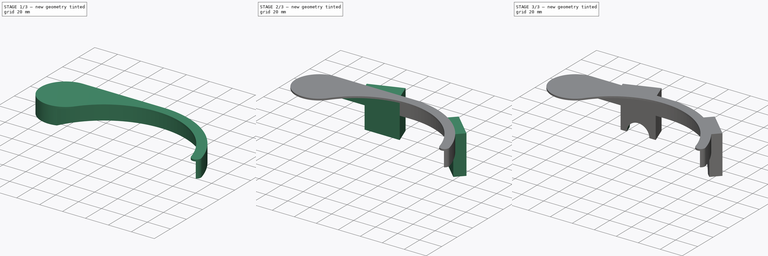
[diagram: build sequence overview — one tinted view per stage of 3, left to right]
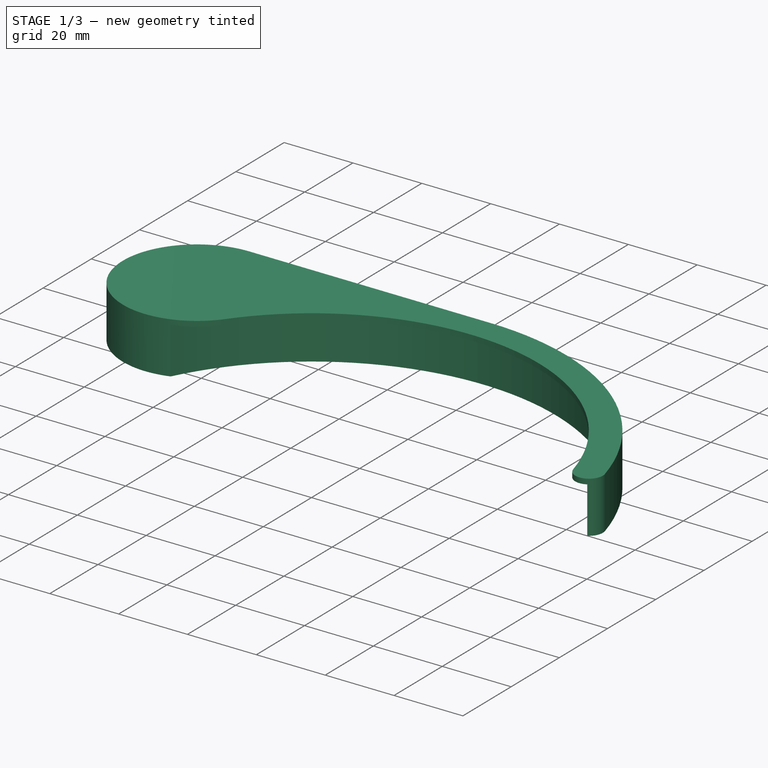
[diagram: stage 1 of 3 — iso view after this stage's code; geometry added in this stage tinted green]
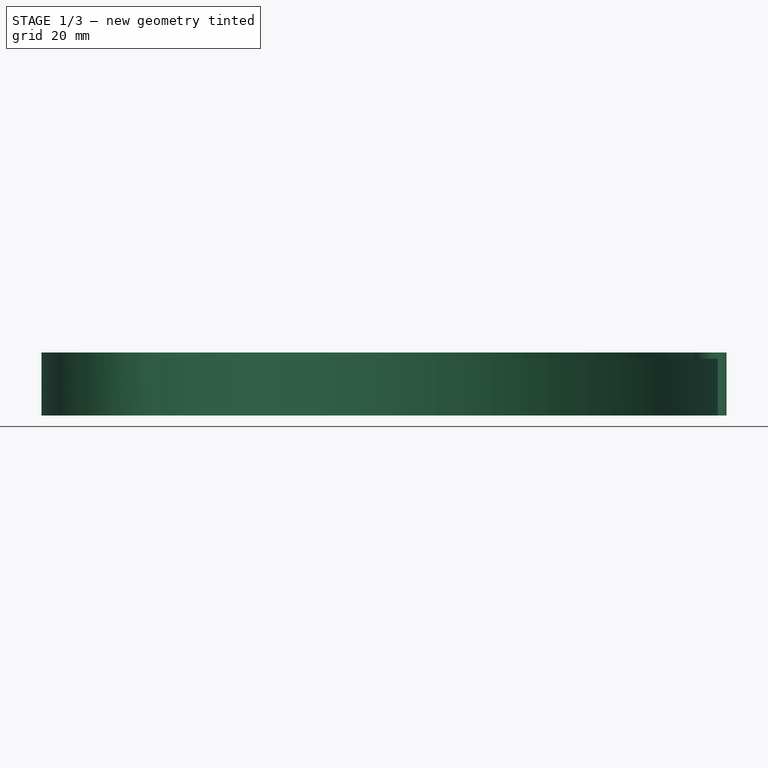
[diagram: stage 1 of 3 — front view after this stage's code; geometry added in this stage tinted green]
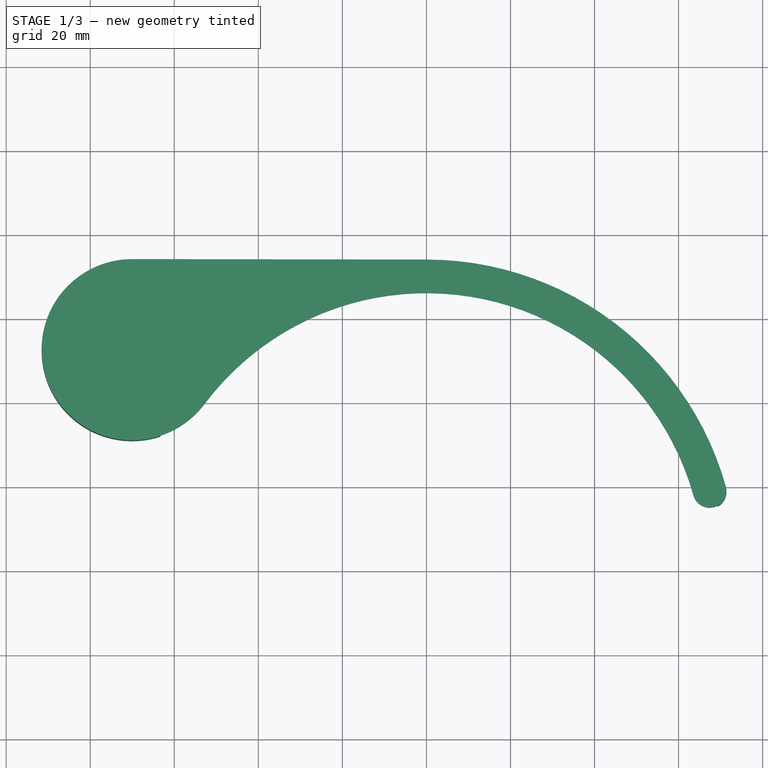
[diagram: stage 1 of 3 — top view after this stage's code; geometry added in this stage tinted green]
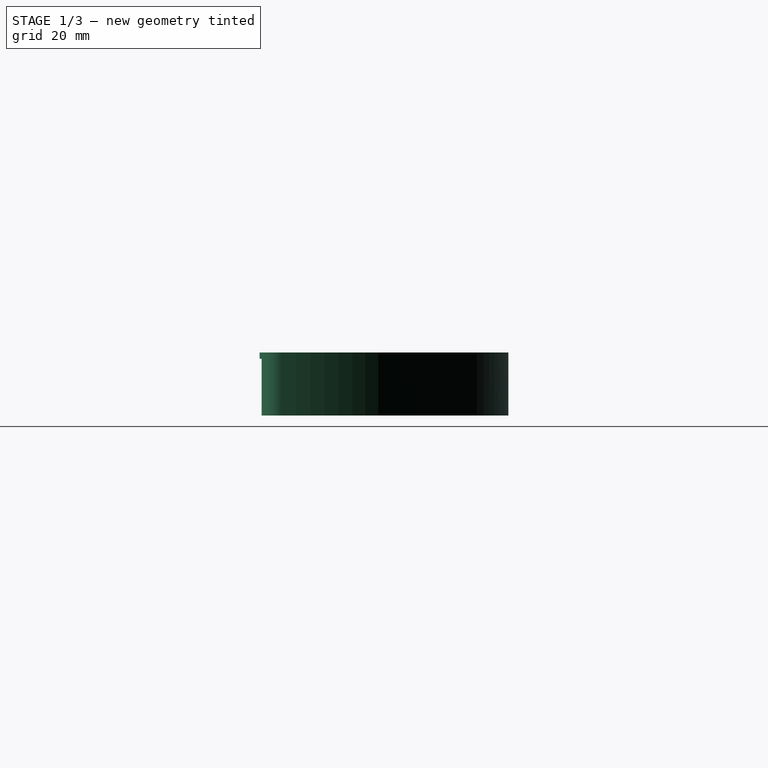
[diagram: stage 1 of 3 — right view after this stage's code; geometry added in this stage tinted green]
FCSTD DOCUMENT  (FreeCAD 0.16R)
Label: 32t.03
License: All rights reserved
LicenseURL: http://en.wikipedia.org/wiki/All_rights_reserved
objects: Sketcher::SketchObject×7, PartDesign::Pocket×4, PartDesign::Pad×3
note: 21 computed .brp shape members not serialized (recipe doc carries the construction recipe); baked Part::Feature solids carry a one-line shape summary decoded from their .brp

FEATURE [Sketcher::SketchObject] Sketch001
  sketch-geometry (10):
    g0: LineSegment [constr] StartX=0 StartY=0 StartZ=0 EndX=-51.0894 EndY=141.031 EndZ=0
    g1: LineSegment [constr] StartX=0 StartY=0 StartZ=0 EndX=109.858 EndY=102.133 EndZ=0
    g2: Circle [constr] CenterX=0 CenterY=0 CenterZ=0 NormalX=0 NormalY=0 NormalZ=1 Radius=68.5
    g3: Circle [constr] CenterX=-330 CenterY=50 CenterZ=0 NormalX=0 NormalY=0 NormalZ=1 Radius=19
    g4: LineSegment [constr] StartX=-329.971 StartY=69 StartZ=0 EndX=0.103776 EndY=68.4999 EndZ=0
    g5: ArcOfCircle CenterX=0 CenterY=0 CenterZ=0 NormalX=0 NormalY=0 NormalZ=1 Radius=74 StartAngle=0.273674 EndAngle=1.56928
    g6: LineSegment StartX=0.112109 StartY=73.9999 StartZ=0 EndX=-70 EndY=74.1061 EndZ=0
    g7: ArcOfCircle CenterX=-70.0327 CenterY=52.55 CenterZ=0 NormalX=0 NormalY=0 NormalZ=1 Radius=21.5562 StartAngle=1.56928 EndAngle=5.63945
    g8: ArcOfCircle CenterX=67.3949 CenterY=18.9189 CenterZ=0 NormalX=0 NormalY=0 NormalZ=1 Radius=4 StartAngle=3.41527 EndAngle=6.55686
    g9: ArcOfCircle CenterX=0 CenterY=0 CenterZ=0 NormalX=0 NormalY=0 NormalZ=1 Radius=66 StartAngle=0.273674 EndAngle=2.49786
  constraints (32):
    c: Coincident(g0,g-1)
    c: Coincident(g1,g-1)
    c: Angle(g1,g0) = 1.16937
    c: Coincident(g2,g-1)
    c: Radius(g2) = 68.5
    c: DistanceX(g3) = -330
    c: Radius(g3) = 19
    c: PointOnObject(g4,g3)
    c: PointOnObject(g4,g2)
    c: Tangent(g4,g2)
    c: Tangent(g4,g3)
    c: DistanceY(g3) = 50
    c: Distance(g0) = 150
    c: Distance(g1) = 150
    c: Coincident(g5,g-1)
    c: Radius(g5) = 74
    c: Coincident(g6,g5)
    c: Tangent(g5,g6)
    c: Parallel(g6,g4)
    c: Coincident(g7,g6)
    c: Tangent(g6,g7)
    c: Tangent(g8,g5)
    c: Coincident(g8,g5)
    c: Radius(g8) = 4
    c: Coincident(g9,g-1)
    c: Coincident(g9,g8)
    c: Tangent(g8,g9)
    c: Coincident(g7,g9)
    c: Tangent(g7,g9)
    c: DistanceX(g6) = -70
    c: DistanceY(g5) = 20
    c: Angle(g0,g4) = 1.22173
FEATURE [PartDesign::Pad] Pad
  Length = 15
  Length2 = 100
  Sketch = -> Sketch001
  Type = 0
FEATURE [Sketcher::SketchObject] Sketch002
  Placement = pos=(0,0,0) rot=(1,0,0;3.14159rad)
  Support = -> Pad [Face6]
  sketch-geometry (1):
    g0: Circle CenterX=0 CenterY=0 CenterZ=0 NormalX=0 NormalY=0 NormalZ=1 Radius=71
  constraints (2):
    c: Coincident(g0,g-1)
    c: Radius(g0) = 71
FEATURE [PartDesign::Pocket] Pocket
  Length = 13.5
  Sketch = -> Sketch002
  Type = 0
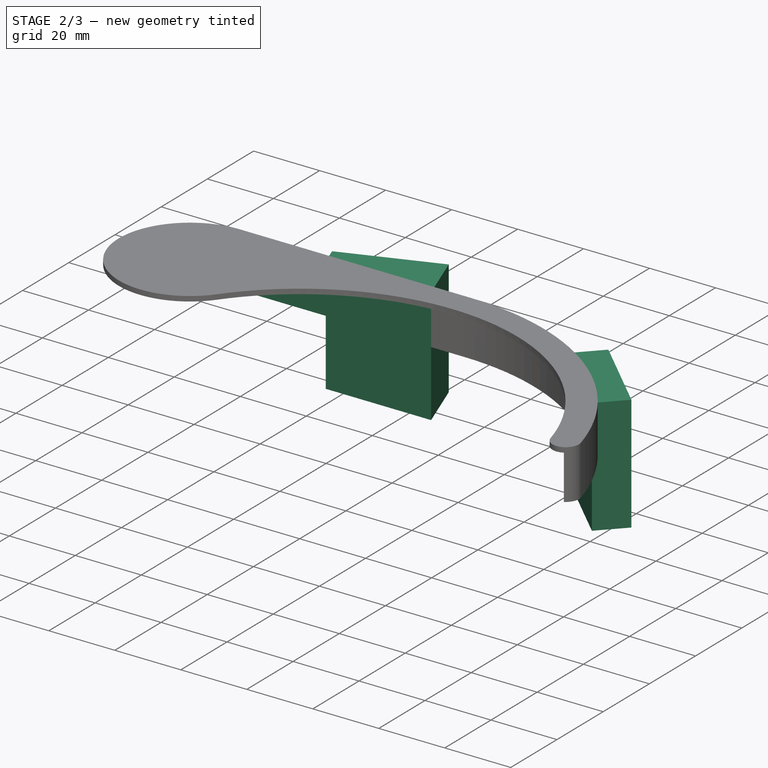
[diagram: stage 2 of 3 — iso view after this stage's code; geometry added in this stage tinted green]
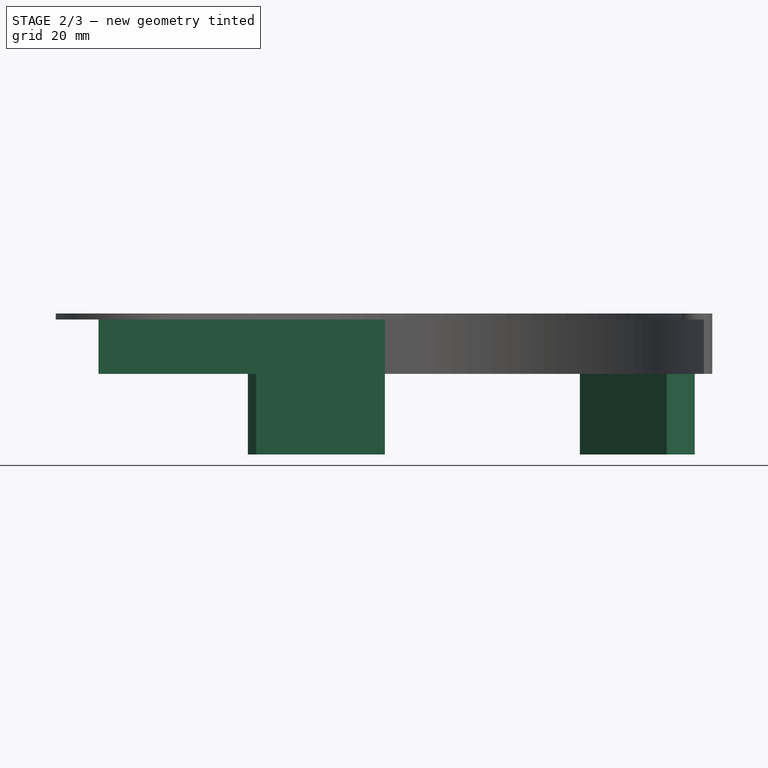
[diagram: stage 2 of 3 — front view after this stage's code; geometry added in this stage tinted green]
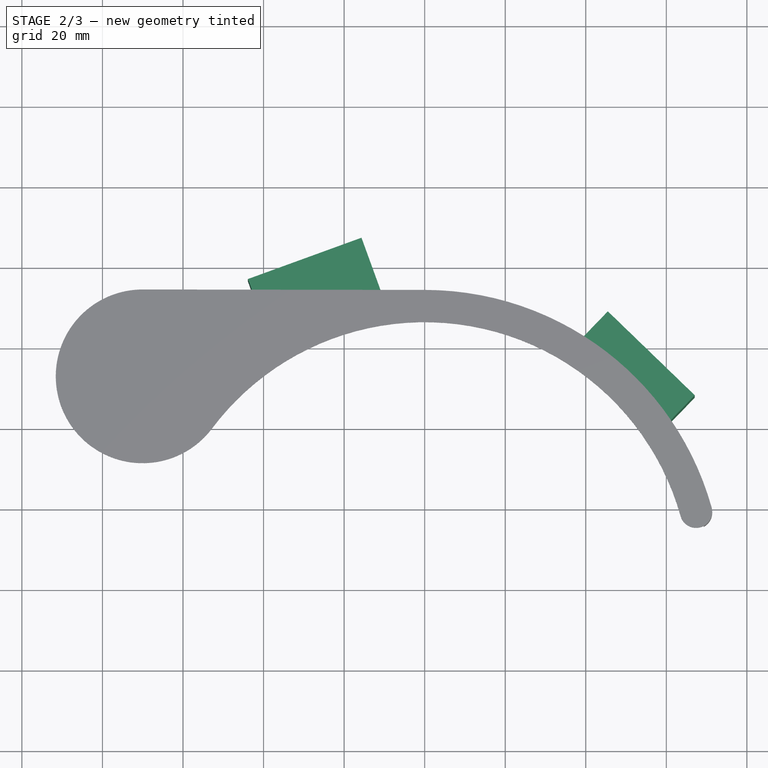
[diagram: stage 2 of 3 — top view after this stage's code; geometry added in this stage tinted green]
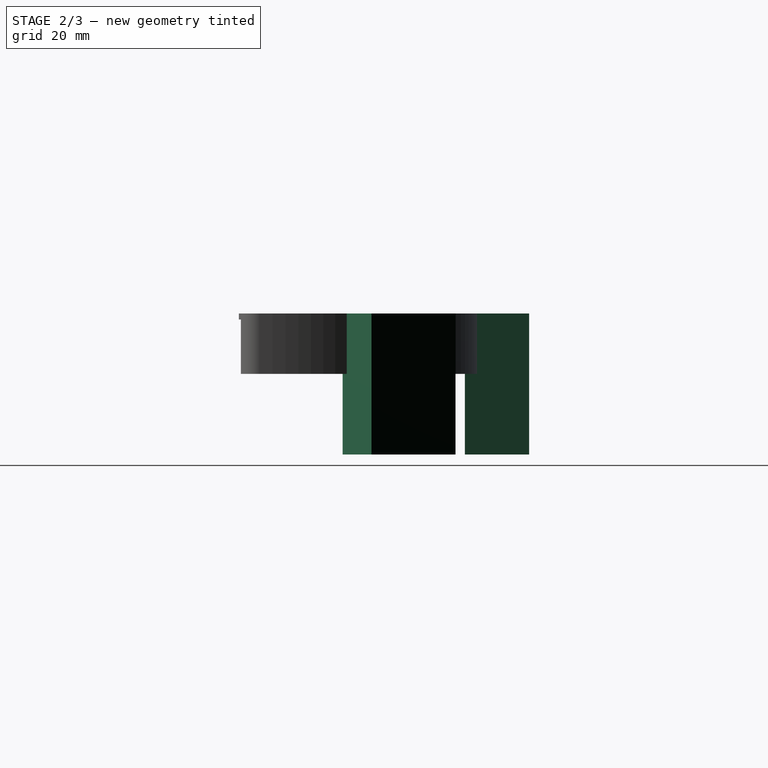
[diagram: stage 2 of 3 — right view after this stage's code; geometry added in this stage tinted green]
FEATURE [Sketcher::SketchObject] Sketch003
  ExternalGeometry = -> [Pocket]
  Placement = pos=(0,0,0) rot=(1,0,0;3.14159rad)
  Support = -> Pocket [Face4]
  sketch-geometry (3):
    g0: LineSegment StartX=-153.249 StartY=-71.2323 StartZ=0 EndX=0.107679 EndY=-70.9999 EndZ=0
    g1: LineSegment StartX=0.107679 StartY=-70.9999 StartZ=0 EndX=-35.4631 EndY=35.7409 EndZ=0
    g2: LineSegment StartX=-35.4631 StartY=35.7409 StartZ=0 EndX=-153.249 EndY=-71.2323 EndZ=0
  constraints (9):
    c: Coincident(g0,g1)
    c: Coincident(g1,g2)
    c: Coincident(g0,g2)
    c: PointOnObject(g0,g-4)
    c: Tangent(g0,g-4)
    c: Parallel(g0,g-3)
    c: DistanceY(g1) = 35.7409
    c: DistanceX(g1) = -35.4631
    c: Distance(g0) = 153.357
FEATURE [PartDesign::Pocket] Pocket001
  Length = 13.5
  Sketch = -> Sketch003
  Type = 0
FEATURE [Sketcher::SketchObject] Sketch005
  ExternalGeometry = -> [Pocket001]
  Placement = pos=(0,0,15) rot=(0,0,1;0rad)
  Support = -> Pocket001 [Face5]
  sketch-geometry (7):
    g0: LineSegment [constr] StartX=0 StartY=0 StartZ=0 EndX=-51.303 EndY=140.954 EndZ=0
    g1: LineSegment [constr] StartX=0 StartY=0 StartZ=0 EndX=104.199 EndY=107.901 EndZ=0
    g2: Circle [constr] CenterX=-330 CenterY=50 CenterZ=0 NormalX=0 NormalY=0 NormalZ=1 Radius=19
    g3: LineSegment StartX=38.5306 StartY=61.493 StartZ=0 EndX=45.4772 EndY=68.6864 EndZ=0
    g4: LineSegment StartX=45.4772 StartY=68.6864 StartZ=0 EndX=67.0574 EndY=47.8466 EndZ=0
    g5: LineSegment StartX=67.0574 StartY=47.8466 StartZ=0 EndX=60.1108 EndY=40.6533 EndZ=0
    g6: LineSegment StartX=60.1108 StartY=40.6533 StartZ=0 EndX=38.5306 EndY=61.493 EndZ=0
  constraints (21):
    c: Coincident(g0,g-1)
    c: Coincident(g1,g-1)
    c: Angle(g1,g0) = 1.11701
    c: Angle(g0) = 1.91986
    c: DistanceX(g2) = -330
    c: Radius(g2) = 19
    c: DistanceY(g2) = 50
    c: Distance(g0) = 150
    c: Distance(g1) = 150
    c: Coincident(g3,g4)
    c: Coincident(g4,g5)
    c: Coincident(g5,g6)
    c: Coincident(g6,g3)
    c: Perpendicular(g1,g4)
    c: Parallel(g6,g4)
    c: Parallel(g5,g3)
    c: Perpendicular(g4,g3)
    c: Distance(g5) = 10
    c: Symmetric(g4,g3,g1)
    c: Distance(g4) = 30
    c: Distance(g-1,g6) = 71
FEATURE [PartDesign::Pad] Pad001
  Length = 35
  Length2 = 100
  Reversed = true
  Sketch = -> Sketch005
  Type = 0
FEATURE [Sketcher::SketchObject] Sketch006
  ExternalGeometry = -> [Pocket001]
  Placement = pos=(0,0,15) rot=(0,0,1;0rad)
  Support = -> Pad001 [Face6]
  sketch-geometry (7):
    g0: LineSegment [constr] StartX=0 StartY=0 StartZ=0 EndX=-51.303 EndY=140.954 EndZ=0
    g1: LineSegment [constr] StartX=0 StartY=0 StartZ=0 EndX=104.199 EndY=107.901 EndZ=0
    g2: Circle [constr] CenterX=-330 CenterY=50 CenterZ=0 NormalX=0 NormalY=0 NormalZ=1 Radius=19
    g3: LineSegment StartX=-41.8276 StartY=71.0634 StartZ=0 EndX=-43.8798 EndY=76.7016 EndZ=0
    g4: LineSegment StartX=-43.8798 StartY=76.7016 StartZ=0 EndX=-15.689 EndY=86.9622 EndZ=0
    g5: LineSegment StartX=-15.689 StartY=86.9622 StartZ=0 EndX=-9.8847 EndY=71.0151 EndZ=0
    g6: LineSegment StartX=-9.8847 StartY=71.0151 StartZ=0 EndX=-41.8276 EndY=71.0634 EndZ=0
  constraints (20):
    c: Coincident(g0,g-1)
    c: Coincident(g1,g-1)
    c: Angle(g1,g0) = 1.11701
    c: Angle(g0) = 1.91986
    c: DistanceX(g2) = -330
    c: Radius(g2) = 19
    c: DistanceY(g2) = 50
    c: Distance(g0) = 150
    c: Distance(g1) = 150
    c: Coincident(g3,g4)
    c: Coincident(g4,g5)
    c: Coincident(g5,g6)
    c: Coincident(g6,g3)
    c: Parallel(g5,g3)
    c: Distance(g4) = 30
    c: Symmetric(g4,g3,g0)
    c: Perpendicular(g4,g3)
    c: Distance(g3,g3) = 6
    c: Parallel(g6,g-4)
    c: Distance(g5,g-4) = 3
FEATURE [PartDesign::Pad] Pad002
  Length = 35
  Length2 = 100
  Reversed = true
  Sketch = -> Sketch006
  Type = 0
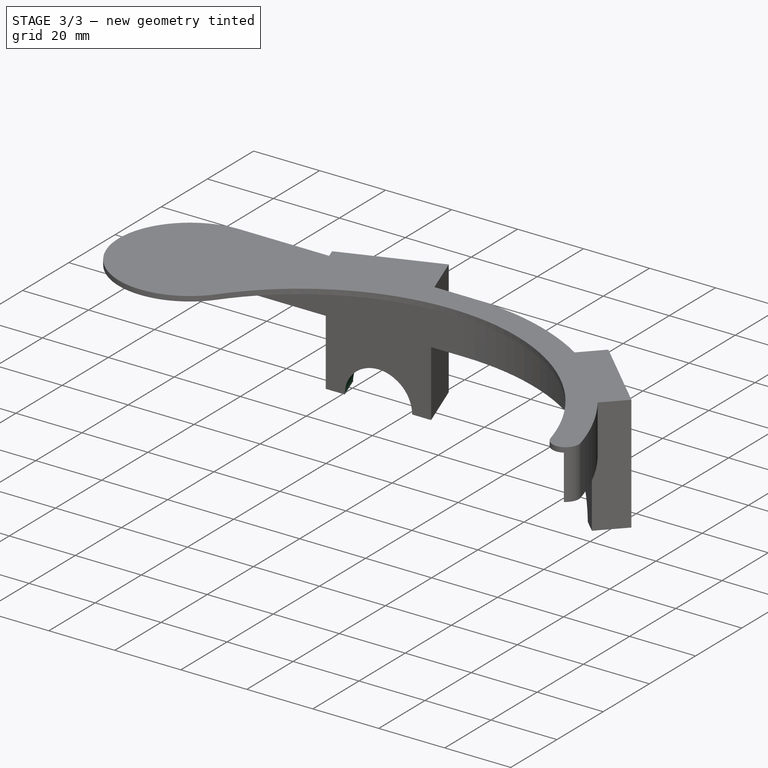
[diagram: stage 3 of 3 — iso view after this stage's code; geometry added in this stage tinted green]
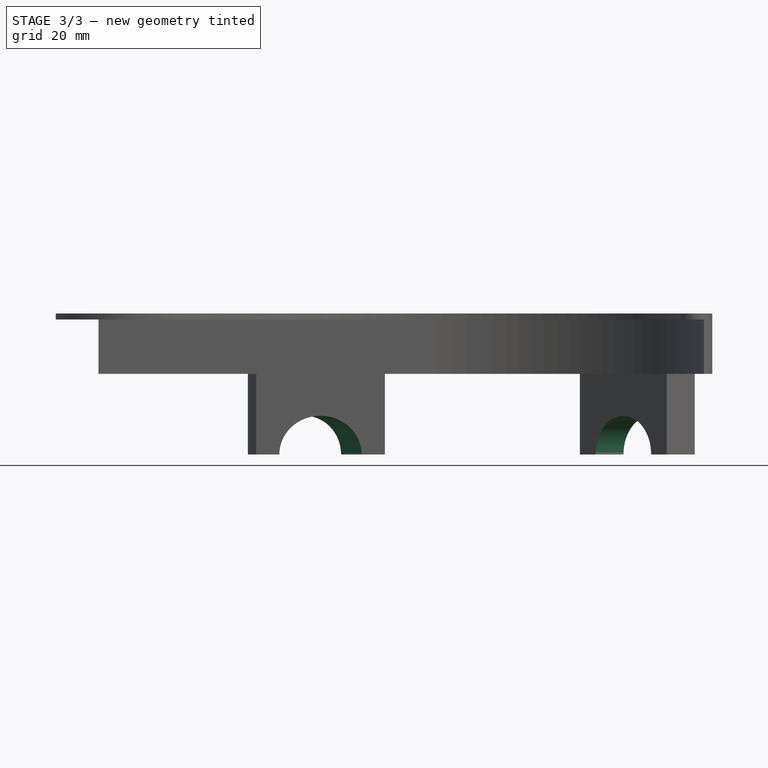
[diagram: stage 3 of 3 — front view after this stage's code; geometry added in this stage tinted green]
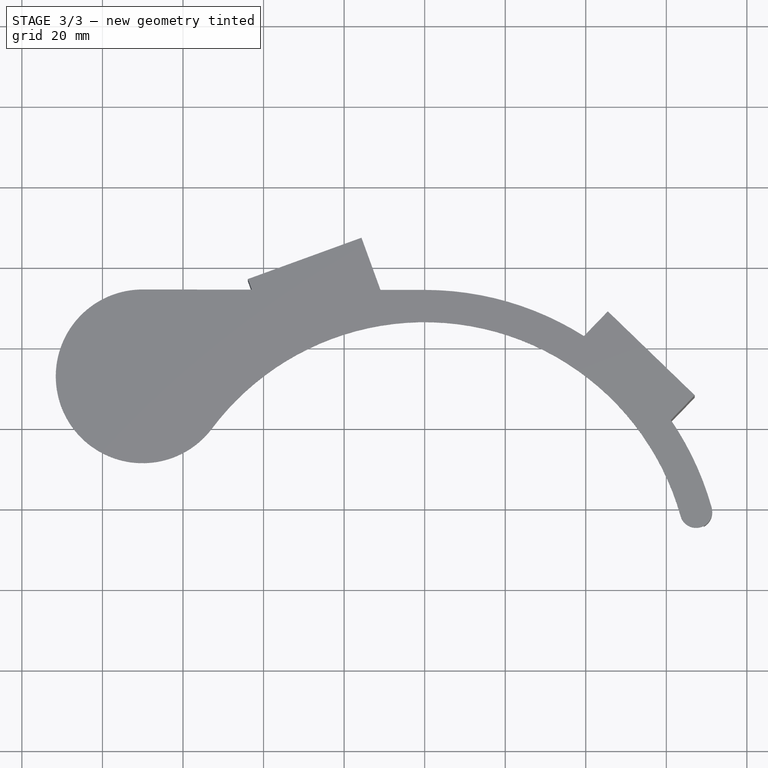
[diagram: stage 3 of 3 — top view after this stage's code; geometry added in this stage tinted green]
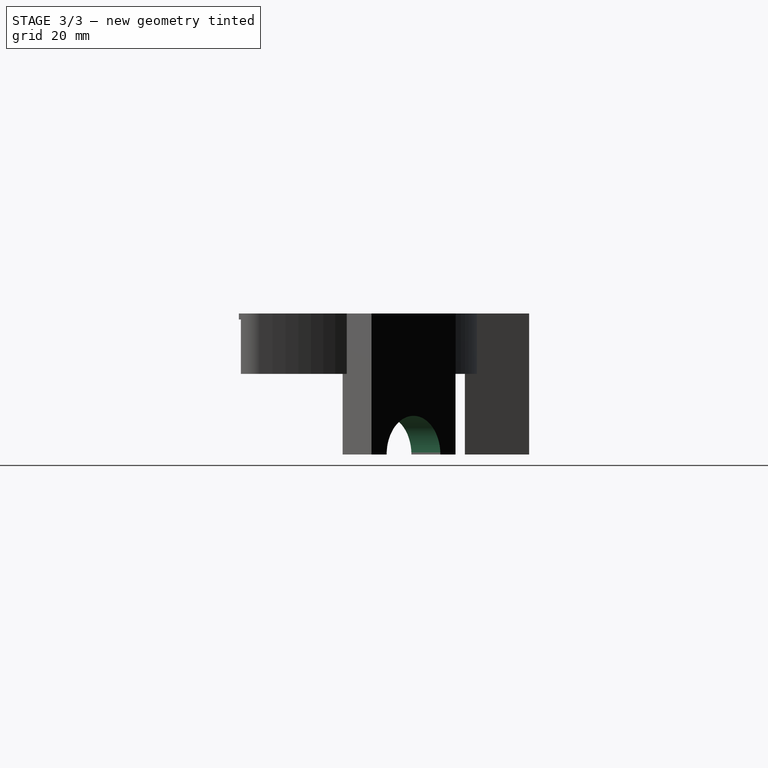
[diagram: stage 3 of 3 — right view after this stage's code; geometry added in this stage tinted green]
FEATURE [Sketcher::SketchObject] Sketch
  ExternalGeometry = -> [Pad002]
  Placement = pos=(49.3207,51.0731,0) rot=(0.868262,-0.3508,-0.3508;1.71159rad)
  Support = -> Pad002 [Face10]
  sketch-geometry (1):
    g0: Circle CenterX=0 CenterY=-20 CenterZ=0 NormalX=0 NormalY=0 NormalZ=1 Radius=9.6
  constraints (2):
    c: Symmetric(g-3,g-3,g0)
    c: Radius(g0) = 9.6
FEATURE [PartDesign::Pocket] Pocket002
  Length = 5
  Sketch = -> Sketch
  Type = 1
FEATURE [Sketcher::SketchObject] Sketch009
  ExternalGeometry = -> [Pocket002]
  Placement = pos=(-29.7844,81.8319,0) rot=(-0.123724,0.701674,0.701674;3.38779rad)
  Support = -> Pocket002 [Face34]
  sketch-geometry (1):
    g0: Circle CenterX=0 CenterY=-20 CenterZ=0 NormalX=0 NormalY=0 NormalZ=1 Radius=9.6
  constraints (2):
    c: Symmetric(g-4,g-3,g0)
    c: Radius(g0) = 9.6
FEATURE [PartDesign::Pocket] Pocket003
  Length = 5
  Sketch = -> Sketch009
  Type = 1
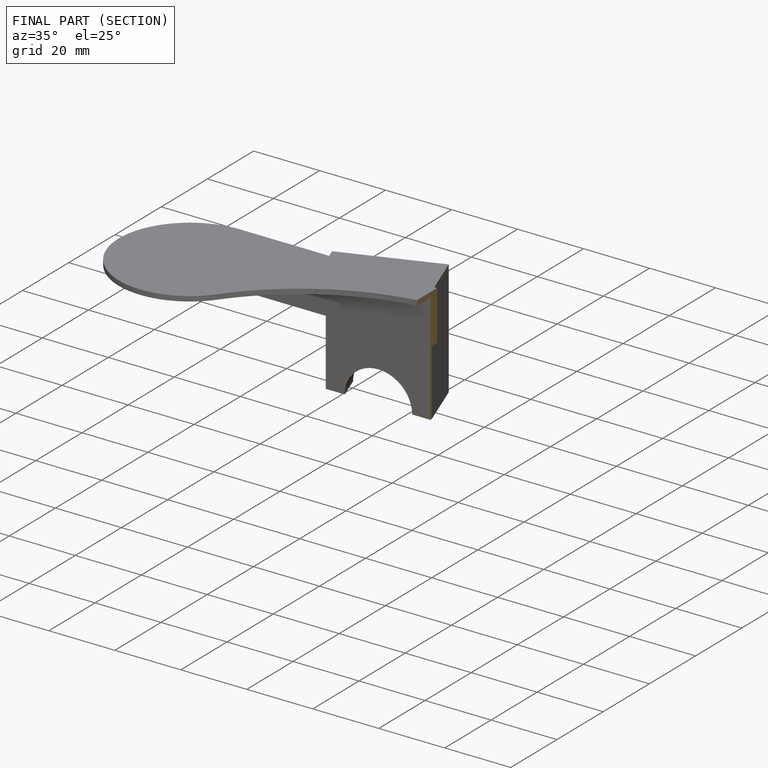
[diagram: finished part — half-section view (interior)]
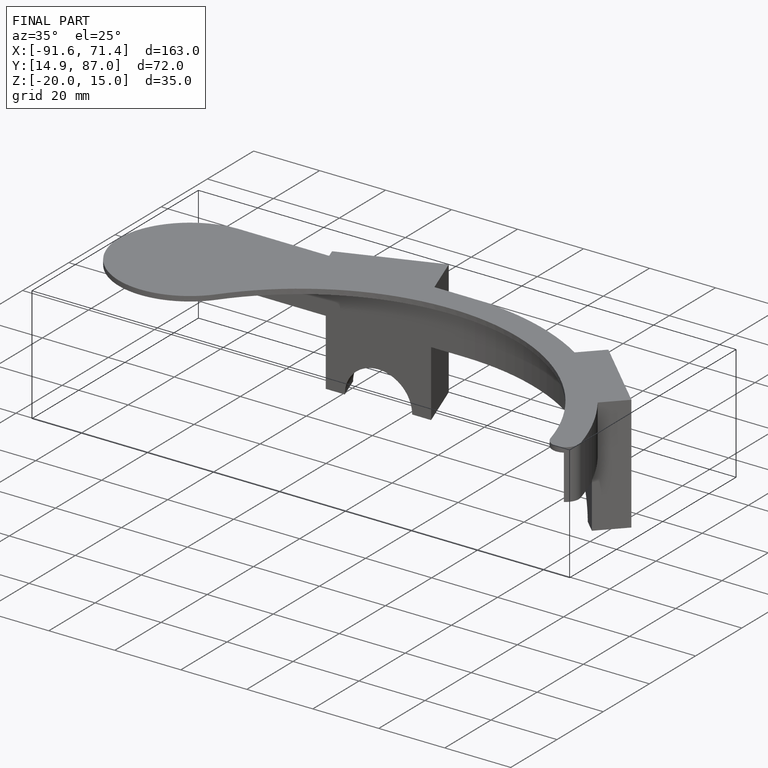
[diagram: finished part — iso view with bounding-box wireframe]
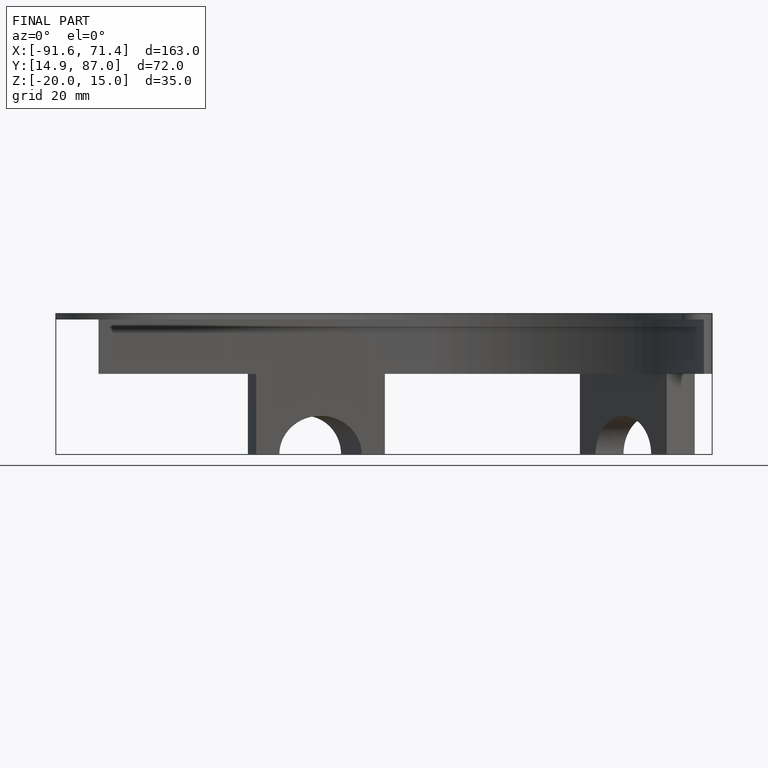
[diagram: finished part — front view with bounding-box wireframe]
